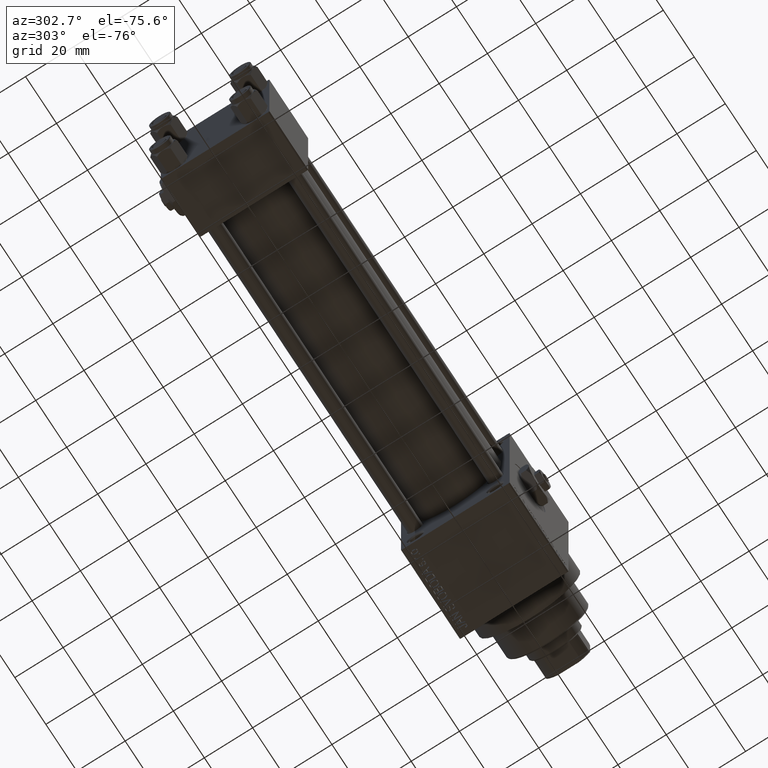
[diagram: clean part render]
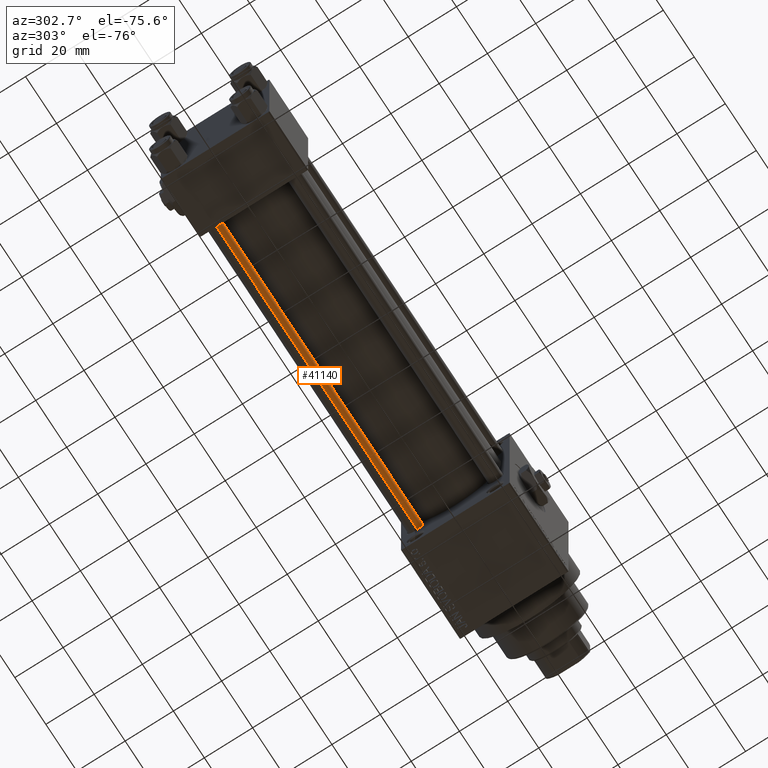
[diagram: same view with one face highlighted and labeled with its STEP entity id]
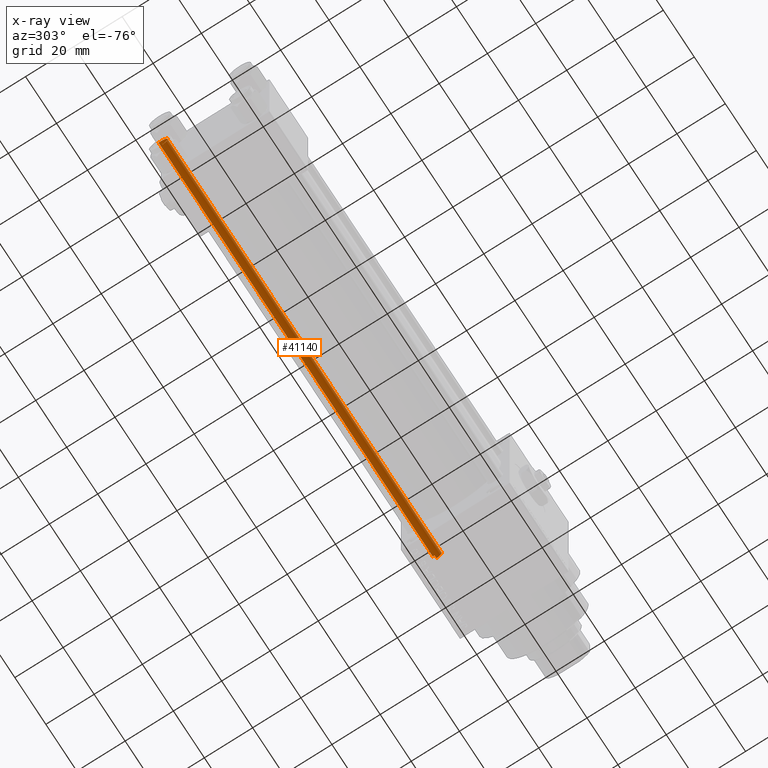
[diagram: x-ray of the same camera — body ghosted, the highlighted face saturated]
A machine part, auxiliary view. The second image highlights one B-rep face of the part: STEP entity #41140.
The next image is the same camera in x-ray: the body ghosted, the highlighted face saturated — about 0% of this face is hidden behind the body in this view.
In plain terms, the highlighted cylindrical surface (edge-blend (fillet) strip) has radius 3 mm, axis along (1, -0, 0).
Its self-contained STEP definition (entity closure, byte-faithful):
#129 = DIRECTION ( 'NONE',  ( -0.000000000000000000, -0.000000000000000000, -1.000000000000000000 ) ) ;
#866 = EDGE_CURVE ( 'NONE', #23905, #19425, #14073, .T. ) ;
#3653 = EDGE_LOOP ( 'NONE', ( #5550, #20314, #15509, #31953 ) ) ;
#5550 = ORIENTED_EDGE ( 'NONE', *, *, #12489, .F. ) ;
#6324 = DIRECTION ( 'NONE',  ( 1.000000000000000000, 0.000000000000000000, 0.000000000000000000 ) ) ;
#7262 = DIRECTION ( 'NONE',  ( -1.000000000000000000, 0.000000000000000000, 0.000000000000000000 ) ) ;
#10959 = FACE_OUTER_BOUND ( 'NONE', #3653, .T. ) ;
#11733 = LINE ( 'NONE', #45125, #16024 ) ;
#12489 = EDGE_CURVE ( 'NONE', #32091, #19689, #11733, .T. ) ;
#14073 = LINE ( 'NONE', #32737, #36504 ) ;
#15426 = AXIS2_PLACEMENT_3D ( 'NONE', #43906, #19694, #6324 ) ;
#15509 = ORIENTED_EDGE ( 'NONE', *, *, #866, .T. ) ;
#16024 = VECTOR ( 'NONE', #34323, 1000.000000000000000 ) ;
#19425 = VERTEX_POINT ( 'NONE', #33222 ) ;
#19689 = VERTEX_POINT ( 'NONE', #47435 ) ;
#19694 = DIRECTION ( 'NONE',  ( -0.000000000000000000, -0.000000000000000000, 1.000000000000000000 ) ) ;
#20314 = ORIENTED_EDGE ( 'NONE', *, *, #48312, .T. ) ;
#20871 = AXIS2_PLACEMENT_3D ( 'NONE', #22738, #129, #7262 ) ;
#20932 = CIRCLE ( 'NONE', #15426, 3.000000000000000444 ) ;
#22738 = CARTESIAN_POINT ( 'NONE',  ( 0.000000000000000000, 0.000000000000000000, 178.0000000000000000 ) ) ;
#23905 = VERTEX_POINT ( 'NONE', #40890 ) ;
#24767 = CARTESIAN_POINT ( 'NONE',  ( 0.000000000000000000, 0.000000000000000000, 177.5000000000000000 ) ) ;
#26415 = CIRCLE ( 'NONE', #36619, 3.000000000000000444 ) ;
#27896 = CARTESIAN_POINT ( 'NONE',  ( 3.000000000000000444, 3.673940397442060361E-16, 177.5000000000000000 ) ) ;
#29174 = DIRECTION ( 'NONE',  ( 1.000000000000000000, 0.000000000000000000, 0.000000000000000000 ) ) ;
#31953 = ORIENTED_EDGE ( 'NONE', *, *, #44224, .T. ) ;
#32091 = VERTEX_POINT ( 'NONE', #27896 ) ;
#32737 = CARTESIAN_POINT ( 'NONE',  ( -3.000000000000000444, 0.000000000000000000, 178.0000000000000000 ) ) ;
#33216 = DIRECTION ( 'NONE',  ( -0.000000000000000000, -0.000000000000000000, -1.000000000000000000 ) ) ;
#33222 = CARTESIAN_POINT ( 'NONE',  ( -3.000000000000000444, 0.000000000000000000, 0.5000000000000281997 ) ) ;
#33782 = CYLINDRICAL_SURFACE ( 'NONE', #20871, 3.000000000000000444 ) ;
#34323 = DIRECTION ( 'NONE',  ( -0.000000000000000000, -0.000000000000000000, -1.000000000000000000 ) ) ;
#36504 = VECTOR ( 'NONE', #33216, 1000.000000000000000 ) ;
#36619 = AXIS2_PLACEMENT_3D ( 'NONE', #24767, #47847, #29174 ) ;
#40890 = CARTESIAN_POINT ( 'NONE',  ( -3.000000000000000444, 0.000000000000000000, 177.5000000000000000 ) ) ;
#41140 = ADVANCED_FACE ( 'NONE', ( #10959 ), #33782, .T. ) ;
#43906 = CARTESIAN_POINT ( 'NONE',  ( 0.000000000000000000, 0.000000000000000000, 0.5000000000000281997 ) ) ;
#44224 = EDGE_CURVE ( 'NONE', #19425, #19689, #20932, .T. ) ;
#45125 = CARTESIAN_POINT ( 'NONE',  ( 3.000000000000000444, 3.673940397442060361E-16, 178.0000000000000000 ) ) ;
#47435 = CARTESIAN_POINT ( 'NONE',  ( 3.000000000000000444, 3.673940397442060361E-16, 0.5000000000000281997 ) ) ;
#47847 = DIRECTION ( 'NONE',  ( 0.000000000000000000, 0.000000000000000000, -1.000000000000000000 ) ) ;
#48312 = EDGE_CURVE ( 'NONE', #32091, #23905, #26415, .T. ) ;